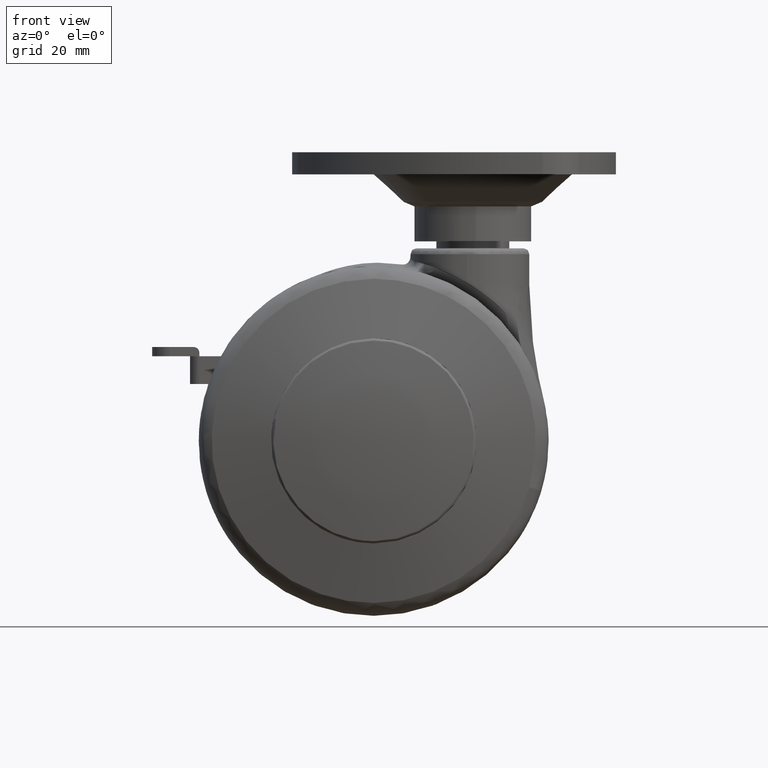
[diagram: clean part render]
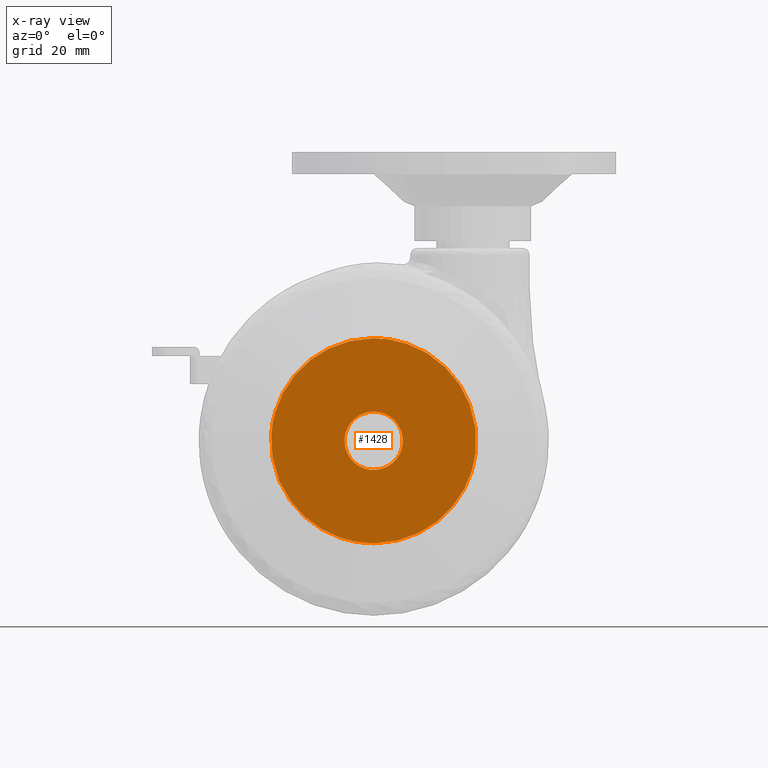
[diagram: x-ray — body ghosted, one internal face saturated and labeled with its STEP entity id]
A machine part, front view, then the same camera in x-ray: the body is ghosted and one INTERNAL B-rep face — a face not visible from any outside direction — is saturated and labeled: STEP entity #1428.
In plain terms, the highlighted face is a freeform B-spline surface patch.
Its self-contained STEP definition (entity closure, byte-faithful):
#104=CARTESIAN_POINT('',(-17.567174139571790,-17.423049182183458,1.074426707223919));
#105=VERTEX_POINT('',#104);
#111=CARTESIAN_POINT('',(0.0,-17.423049182183451,17.600000000000001));
#112=VERTEX_POINT('',#111);
#113=CARTESIAN_POINT('',(0.0,-17.423049182183451,17.600000000000001));
#114=CARTESIAN_POINT('',(-16.556452827396331,-17.423049182183451,17.600000000000005));
#115=CARTESIAN_POINT('',(-17.567174139571794,-17.423049182183451,1.074426707223918));
#123=(BOUNDED_CURVE()B_SPLINE_CURVE(2,(#113,#114,#115),.UNSPECIFIED.,.F.,.U.)B_SPLINE_CURVE_WITH_KNOTS((3,3),(0.500000000000000,0.739333233220325),.UNSPECIFIED.)CURVE()GEOMETRIC_REPRESENTATION_ITEM()RATIONAL_B_SPLINE_CURVE((1.0,0.719603675812273,0.976072622432091))REPRESENTATION_ITEM(''));
#124=EDGE_CURVE('',#112,#105,#123,.T.);
#126=CARTESIAN_POINT('',(17.476970793961002,-17.423049182183451,-2.077376197594191));
#127=VERTEX_POINT('',#126);
#128=CARTESIAN_POINT('',(17.476970793960998,-17.423049182183448,-2.077376197594191));
#129=CARTESIAN_POINT('',(17.599999999999994,-17.423049182183455,-1.042331200503017));
#130=CARTESIAN_POINT('',(17.600000000000001,-17.423049182183451,-1.653219E-015));
#131=CARTESIAN_POINT('',(17.600000000000005,-17.423049182183451,17.600000000000005));
#132=CARTESIAN_POINT('',(0.0,-17.423049182183451,17.600000000000001));
#140=(BOUNDED_CURVE()B_SPLINE_CURVE(2,(#128,#129,#130,#131,#132),.UNSPECIFIED.,.F.,.U.)B_SPLINE_CURVE_WITH_KNOTS((3,2,3),(0.229562728151098,0.250000000000000,0.500000000000000),.UNSPECIFIED.)CURVE()GEOMETRIC_REPRESENTATION_ITEM()RATIONAL_B_SPLINE_CURVE((0.956027253284404,0.976056246657638,1.0,0.707106781186548,1.0))REPRESENTATION_ITEM(''));
#141=EDGE_CURVE('',#127,#112,#140,.T.);
#189=CARTESIAN_POINT('',(0.0,-17.423049182183451,-17.600000000000001));
#190=VERTEX_POINT('',#189);
#191=CARTESIAN_POINT('',(0.0,-17.423049182183451,-17.600000000000001));
#192=CARTESIAN_POINT('',(15.631895374934871,-17.423049182183455,-17.599999999999998));
#193=CARTESIAN_POINT('',(17.476970793960998,-17.423049182183448,-2.077376197594191));
#201=(BOUNDED_CURVE()B_SPLINE_CURVE(2,(#191,#192,#193),.UNSPECIFIED.,.F.,.U.)B_SPLINE_CURVE_WITH_KNOTS((3,3),(0.0,0.229562728151098),.UNSPECIFIED.)CURVE()GEOMETRIC_REPRESENTATION_ITEM()RATIONAL_B_SPLINE_CURVE((1.0,0.731050534528909,0.956027253284404))REPRESENTATION_ITEM(''));
#202=EDGE_CURVE('',#190,#127,#201,.T.);
#204=CARTESIAN_POINT('',(-17.567174139571794,-17.423049182183451,1.074426707223918));
#205=CARTESIAN_POINT('',(-17.599999999999998,-17.423049182183448,0.537714801084180));
#206=CARTESIAN_POINT('',(-17.600000000000001,-17.423049182183451,-1.653219E-015));
#207=CARTESIAN_POINT('',(-17.600000000000005,-17.423049182183451,-17.600000000000005));
#208=CARTESIAN_POINT('',(0.0,-17.423049182183451,-17.600000000000001));
#216=(BOUNDED_CURVE()B_SPLINE_CURVE(2,(#204,#205,#206,#207,#208),.UNSPECIFIED.,.F.,.U.)B_SPLINE_CURVE_WITH_KNOTS((3,2,3),(0.739333233220325,0.750000000000000,1.0),.UNSPECIFIED.)CURVE()GEOMETRIC_REPRESENTATION_ITEM()RATIONAL_B_SPLINE_CURVE((0.976072622432091,0.987503105374275,1.0,0.707106781186548,1.0))REPRESENTATION_ITEM(''));
#217=EDGE_CURVE('',#105,#190,#216,.T.);
#260=CARTESIAN_POINT('',(4.965047631803769,-17.423049182183451,-0.590171173406309));
#261=VERTEX_POINT('',#260);
#262=CARTESIAN_POINT('',(0.0,-17.423049182183451,4.999999999999998));
#263=VERTEX_POINT('',#262);
#264=CARTESIAN_POINT('',(4.965047631803769,-17.423049182183444,-0.590171173406309));
#265=CARTESIAN_POINT('',(4.999999999999999,-17.423049182183451,-0.296120598383362));
#266=CARTESIAN_POINT('',(5.0,-17.423049182183451,-1.653219E-015));
#267=CARTESIAN_POINT('',(5.000000000000001,-17.423049182183451,4.999999999999997));
#268=CARTESIAN_POINT('',(0.0,-17.423049182183451,4.999999999999998));
#276=(BOUNDED_CURVE()B_SPLINE_CURVE(2,(#264,#265,#266,#267,#268),.UNSPECIFIED.,.F.,.U.)B_SPLINE_CURVE_WITH_KNOTS((3,2,3),(0.229562473507304,0.250000000000000,0.500000000000000),.UNSPECIFIED.)CURVE()GEOMETRIC_REPRESENTATION_ITEM()RATIONAL_B_SPLINE_CURVE((0.956026754171538,0.976055948323876,1.0,0.707106781186548,1.0))REPRESENTATION_ITEM(''));
#277=EDGE_CURVE('',#261,#263,#276,.T.);
#279=CARTESIAN_POINT('',(-4.990673991816056,-17.423049182183451,0.305242702469337));
#280=VERTEX_POINT('',#279);
#281=CARTESIAN_POINT('',(0.0,-17.423049182183451,4.999999999999998));
#282=CARTESIAN_POINT('',(-4.703530325473249,-17.423049182183455,4.999999999999997));
#283=CARTESIAN_POINT('',(-4.990673991816056,-17.423049182183451,0.305242702469337));
#291=(BOUNDED_CURVE()B_SPLINE_CURVE(2,(#281,#282,#283),.UNSPECIFIED.,.F.,.U.)B_SPLINE_CURVE_WITH_KNOTS((3,3),(0.500000000000000,0.739332961910401),.UNSPECIFIED.)CURVE()GEOMETRIC_REPRESENTATION_ITEM()RATIONAL_B_SPLINE_CURVE((1.0,0.719603993671621,0.976072040962590))REPRESENTATION_ITEM(''));
#292=EDGE_CURVE('',#263,#280,#291,.T.);
#359=CARTESIAN_POINT('',(0.0,-17.423049182183451,-5.000000000000002));
#360=VERTEX_POINT('',#359);
#361=CARTESIAN_POINT('',(0.0,-17.423049182183451,-5.000000000000002));
#362=CARTESIAN_POINT('',(4.440872629536134,-17.423049182183451,-5.000000000000002));
#363=CARTESIAN_POINT('',(4.965047631803769,-17.423049182183444,-0.590171173406309));
#371=(BOUNDED_CURVE()B_SPLINE_CURVE(2,(#361,#362,#363),.UNSPECIFIED.,.F.,.U.)B_SPLINE_CURVE_WITH_KNOTS((3,3),(0.0,0.229562473507304),.UNSPECIFIED.)CURVE()GEOMETRIC_REPRESENTATION_ITEM()RATIONAL_B_SPLINE_CURVE((1.0,0.731050832862672,0.956026754171538))REPRESENTATION_ITEM(''));
#372=EDGE_CURVE('',#360,#261,#371,.T.);
#406=CARTESIAN_POINT('',(-4.990673991816056,-17.423049182183448,0.305242702469337));
#407=CARTESIAN_POINT('',(-5.0,-17.423049182183451,0.152763821301441));
#408=CARTESIAN_POINT('',(-5.0,-17.423049182183451,-1.653219E-015));
#409=CARTESIAN_POINT('',(-5.000000000000001,-17.423049182183451,-5.000000000000002));
#410=CARTESIAN_POINT('',(0.0,-17.423049182183451,-5.000000000000002));
#418=(BOUNDED_CURVE()B_SPLINE_CURVE(2,(#406,#407,#408,#409,#410),.UNSPECIFIED.,.F.,.U.)B_SPLINE_CURVE_WITH_KNOTS((3,2,3),(0.739332961910401,0.750000000000000,1.0),.UNSPECIFIED.)CURVE()GEOMETRIC_REPRESENTATION_ITEM()RATIONAL_B_SPLINE_CURVE((0.976072040962591,0.987502787514927,1.0,0.707106781186548,1.0))REPRESENTATION_ITEM(''));
#419=EDGE_CURVE('',#280,#360,#418,.T.);
#1411=CARTESIAN_POINT('',(-19.357811563419311,-17.423049182183451,19.358240592640399));
#1412=CARTESIAN_POINT('',(-19.357811563419311,-17.423049182183451,-19.358240907352929));
#1413=CARTESIAN_POINT('',(19.357919824527709,-17.423049182183451,19.358240592640399));
#1414=CARTESIAN_POINT('',(19.357919824527709,-17.423049182183451,-19.358240907352929));
#1415=B_SPLINE_SURFACE_WITH_KNOTS('',1,1,((#1411,#1413),(#1412,#1414)),.UNSPECIFIED.,.F.,.F.,.U.,(2,2),(2,2),(0.0,38.716481499993321),(0.0,38.715731387947017),.UNSPECIFIED.);
#1416=ORIENTED_EDGE('',*,*,#202,.T.);
#1417=ORIENTED_EDGE('',*,*,#141,.T.);
#1418=ORIENTED_EDGE('',*,*,#124,.T.);
#1419=ORIENTED_EDGE('',*,*,#217,.T.);
#1420=EDGE_LOOP('',(#1416,#1417,#1418,#1419));
#1421=FACE_OUTER_BOUND('',#1420,.T.);
#1422=ORIENTED_EDGE('',*,*,#292,.F.);
#1423=ORIENTED_EDGE('',*,*,#277,.F.);
#1424=ORIENTED_EDGE('',*,*,#372,.F.);
#1425=ORIENTED_EDGE('',*,*,#419,.F.);
#1426=EDGE_LOOP('',(#1422,#1423,#1424,#1425));
#1427=FACE_BOUND('',#1426,.T.);
#1428=ADVANCED_FACE('',(#1421,#1427),#1415,.T.);